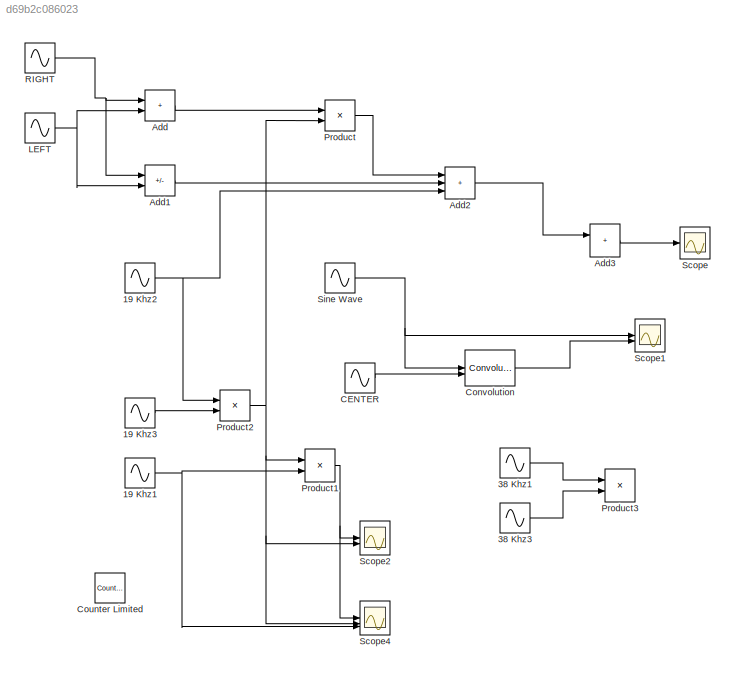
MODEL slx_d69b2c086023
KIND model
CONFIG AbsTol = auto
CONFIG EnableMultiTasking = off
CONFIG FixedStep = auto
CONFIG MaxStep = auto
CONFIG MinStep = auto
CONFIG RelTol = 1e-3
CONFIG SampleTimeConstraint = Unconstrained
CONFIG SolverName = VariableStepAuto
CONFIG StartTime = 0.0
CONFIG StopTime = 10.0
BLOCK [Sin] 19 Khz1
  Frequency = 33
  SampleTime = 0
BLOCK [Sin] 19 Khz2
  Frequency = 33
  SampleTime = 0
BLOCK [Sin] 19 Khz3
  Frequency = 33
  SampleTime = 0
BLOCK [Sin] 38 Khz1
  Frequency = 66
  SampleTime = 0
BLOCK [Sin] 38 Khz3
  Frequency = 66
  Phase = 1.5708
  SampleTime = 0
BLOCK [Sum] Add
  IconShape = rectangular
BLOCK [Sum] Add1
  IconShape = rectangular
  Inputs = +-
BLOCK [Sum] Add2
  IconShape = rectangular
  Inputs = +++
BLOCK [Sum] Add3
  IconShape = rectangular
BLOCK [Sin] CENTER
  Frequency = 200
  SampleTime = 0
BLOCK [Reference] Convolution  REF=dspsigops/Convolution
  SourceBlock = dspsigops/Convolution
  SourceType = Convolution
BLOCK [Reference] Counter Limited  REF=simulink/Sources/Counter
Limited
  SourceBlock = simulink/Sources/Counter\nLimited
  SourceType = Counter Limited
BLOCK [Sin] LEFT
  Frequency = 200
  SampleTime = 0
BLOCK [Product] Product
BLOCK [Product] Product1
BLOCK [Product] Product2
BLOCK [Product] Product3
BLOCK [Sin] RIGHT
  Frequency = 100
  SampleTime = 0
BLOCK [Scope] Scope
  Floating = off
  NumInputPorts = 1
  ScopeSpecificationString = Simulink.scopes.TimeScopeBlockCfg('CurrentConfiguration', extmgr.ConfigurationSet(extmgr.Configuration('Core','General UI',true),extmgr.Configuration('Core','Source UI',true),extmgr.Configuration('Sources','WiredSimulink',true),extmgr.Configuration('Visuals','Time Domain',true,'SerializedDisplays',{struct('MinYLimReal','-3.68316','MaxYLimReal','3.68071','YLabelReal','','MinYLimMag','0.00000','MaxY...<+1324ch>
BLOCK [Scope] Scope1
  Floating = off
  NumInputPorts = 2
  ScopeSpecificationString = Simulink.scopes.TimeScopeBlockCfg('CurrentConfiguration', extmgr.ConfigurationSet(extmgr.Configuration('Core','General UI',true),extmgr.Configuration('Core','Source UI',true),extmgr.Configuration('Sources','WiredSimulink',true,'DataLoggingVariableName','ScopeData1'),extmgr.Configuration('Visuals','Time Domain',true,'SerializedDisplays',{struct('MinYLimReal','-1.00569','MaxYLimReal','1.0486','YLabe...<+1397ch>
BLOCK [Scope] Scope2
  Floating = off
  NumInputPorts = 3
  ScopeSpecificationString = Simulink.scopes.TimeScopeBlockCfg('CurrentConfiguration', extmgr.ConfigurationSet(extmgr.Configuration('Core','General UI',true),extmgr.Configuration('Core','Source UI',true),extmgr.Configuration('Sources','WiredSimulink',true,'DataLoggingVariableName','ScopeData2'),extmgr.Configuration('Visuals','Time Domain',true,'SerializedDisplays',{struct('MinYLimReal','-0.95027','MaxYLimReal','1.0486','YLabe...<+1405ch>
BLOCK [Scope] Scope4
  Floating = off
  NumInputPorts = 3
  ScopeSpecificationString = Simulink.scopes.TimeScopeBlockCfg('CurrentConfiguration', extmgr.ConfigurationSet(extmgr.Configuration('Core','General UI',true),extmgr.Configuration('Core','Source UI',true),extmgr.Configuration('Sources','WiredSimulink',true,'DataLoggingVariableName','ScopeData4'),extmgr.Configuration('Visuals','Time Domain',true,'SerializedDisplays',{struct('MinYLimReal','-0.95304','MaxYLimReal','1.0486','YLabe...<+1458ch>
BLOCK [Sin] Sine Wave
  Frequency = 99
  SampleTime = 0
NET 19 Khz1:1 -> Product1:2, Scope4:3
NET 19 Khz2:1 -> Add2:3, Product2:1
LINE 19 Khz3:1 -> Product2:2
LINE 38 Khz1:1 -> Product3:1
LINE 38 Khz3:1 -> Product3:2
LINE Add1:1 -> Add2:2
LINE Add2:1 -> Add3:1
LINE Add3:1 -> Scope:1
LINE Add:1 -> Product:1
LINE CENTER:1 -> Convolution:2
LINE Convolution:1 -> Scope1:2
NET LEFT:1 -> Add1:2, Add:2
NET Product1:1 -> Scope2:1, Scope4:1
NET Product2:1 -> Product1:1, Product:2, Scope2:2, Scope4:2
LINE Product:1 -> Add2:1
NET RIGHT:1 -> Add1:1, Add:1
NET Sine Wave:1 -> Convolution:1, Scope1:1
note: NET lines group one-source signal fan-out (src -> all destinations, sorted); 1:1 wires keep LINE
